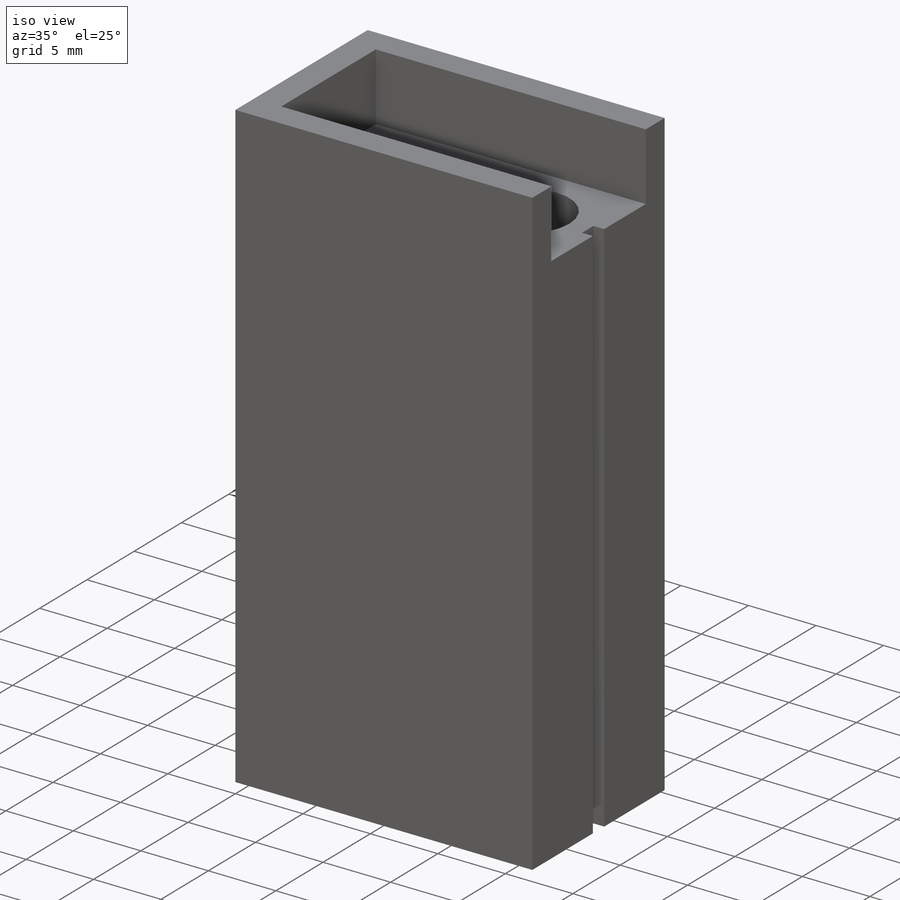
[diagram: iso view]
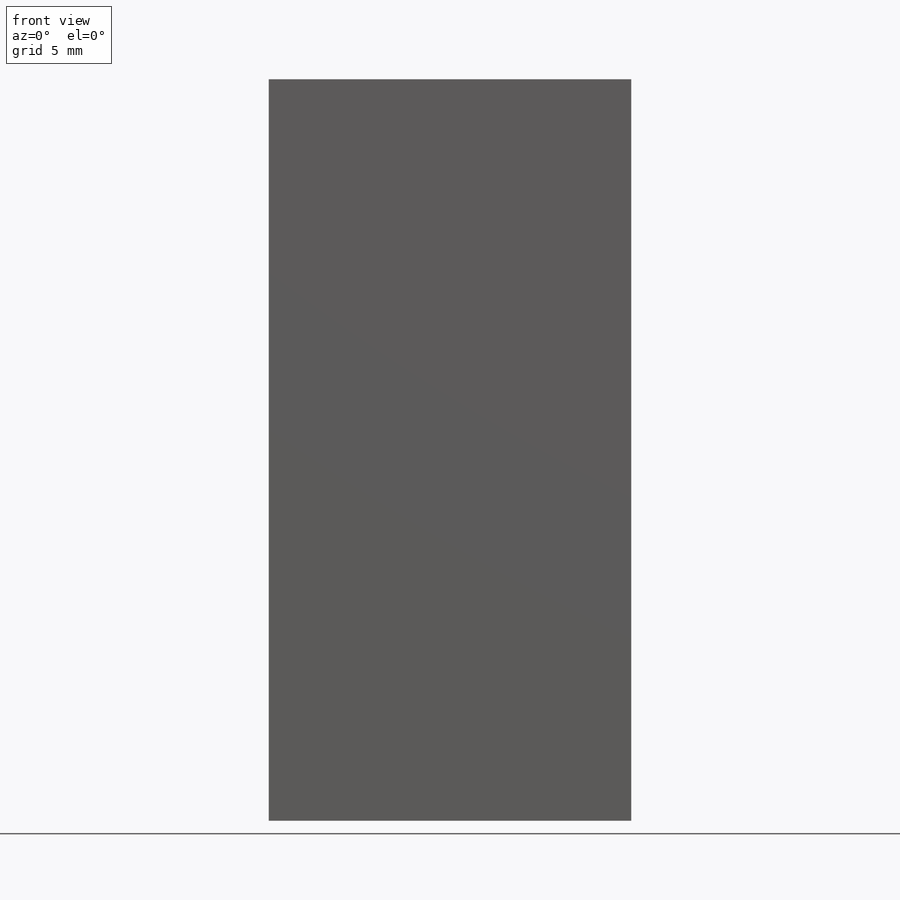
[diagram: front view]
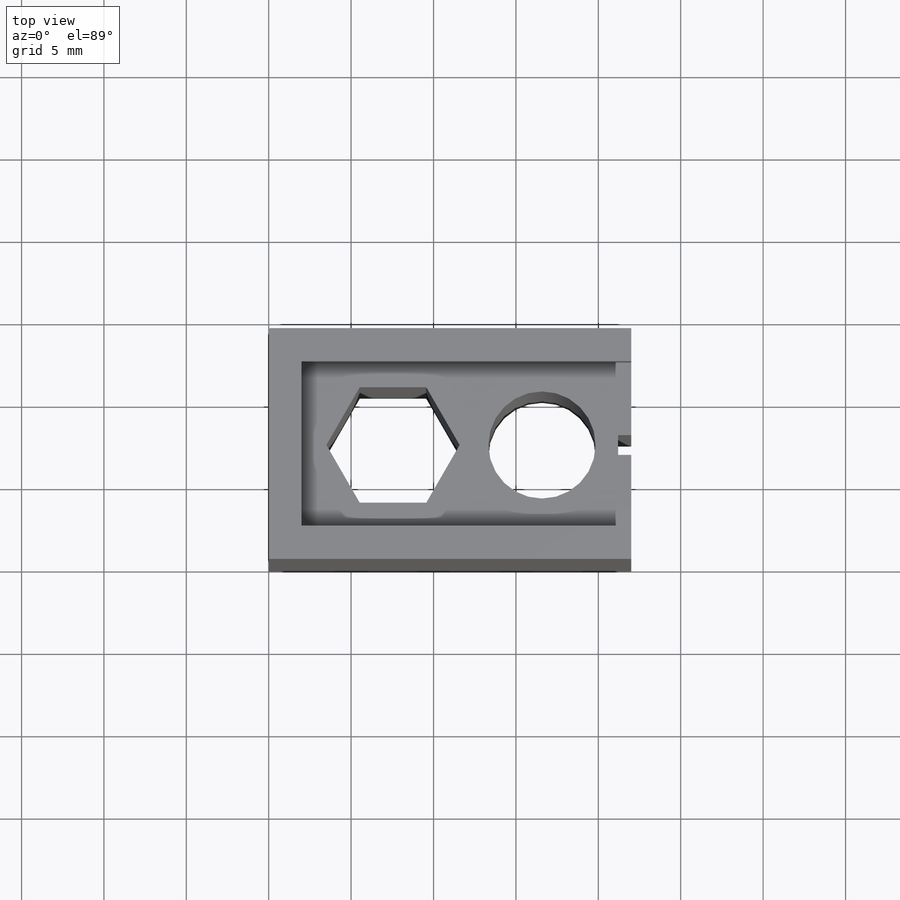
[diagram: top view]
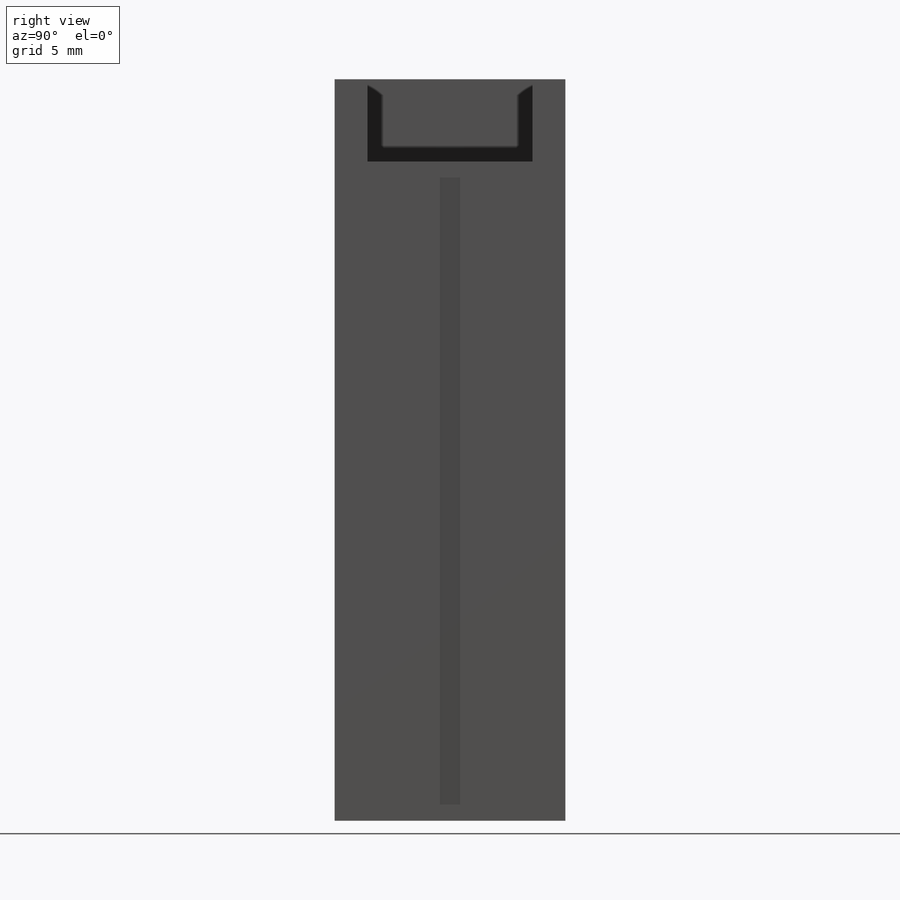
[diagram: right view]
SOLIDWORKS PART (.sldprt)
format: sldprt  version: not decoded by parser v0  size: 182,784 bytes
history: native  units: mm
features: sketch x4, extrude x2, cut_extrude x2, material x1 (+12 scaffold rows collapsed)
feature tree (21):
  scaffold x12  (default folders/planes/origin — collapsed)
  material  "Material <not specified>"
  sketch  "Sketch1"  dims[D1=22.0mm D2=14.0mm]
  extrude  "Boss-Extrude1"  Depth=40mm
  sketch  "Sketch2"  dims[D1=2.0mm D2=2.0mm D3=2.0mm]
  extrude  "Boss-Extrude2"  Depth=5mm
  sketch  "Sketch3"  dims[c1.D1=6.5mm c1.D2=4.0mm c1.D3=~15.242989mm c2.D3=90.0deg c3.D3=5.0mm c3.D4=7.0mm c3.D5=5.0mm c3.D6=5.0mm c3.D7=7.0mm c4.D4=7.0mm c4.D5=1.5mm c4.D6=1.5mm c4.D7=7.0mm c4.D8=2.0mm c4.D9=1.5mm c4.D2=5.0mm c5.D7=12.0mm]
  cut_extrude  "Cut-Extrude1"  [1 undecoded]
  sketch  "Sketch4"  dims[D1=1.2mm D2=0.6mm]
  cut_extrude  "Cut-Extrude2"  Depth=0.8mm
decode coverage: 7 of 8 modeling features carry decoded parameters
note: ~ marks probable driven/reference dimensions
note: 1 parameter value undecoded
note: suppression state not decoded; provenance and decode notes live in map.json
